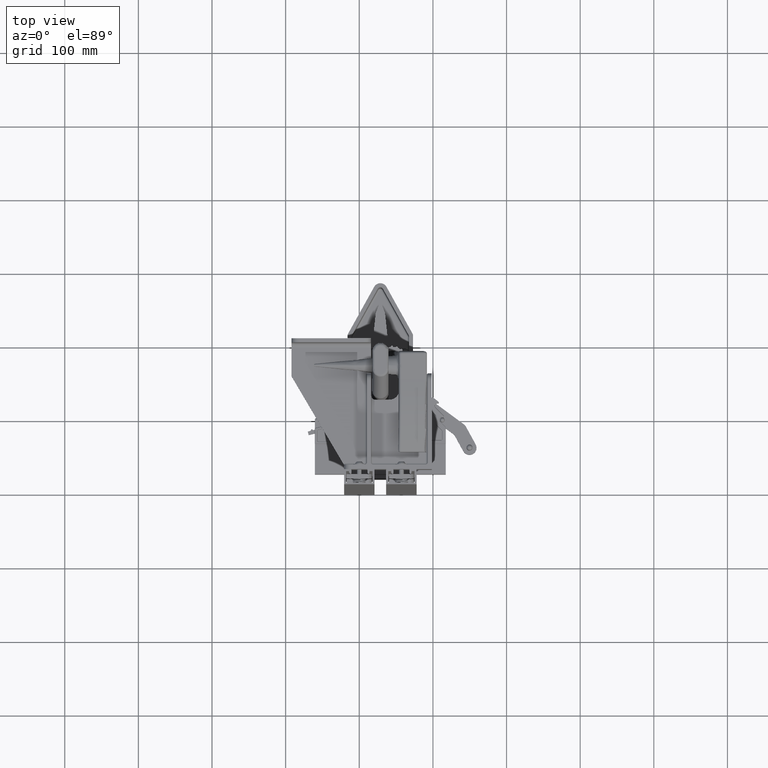
[diagram: clean part render]
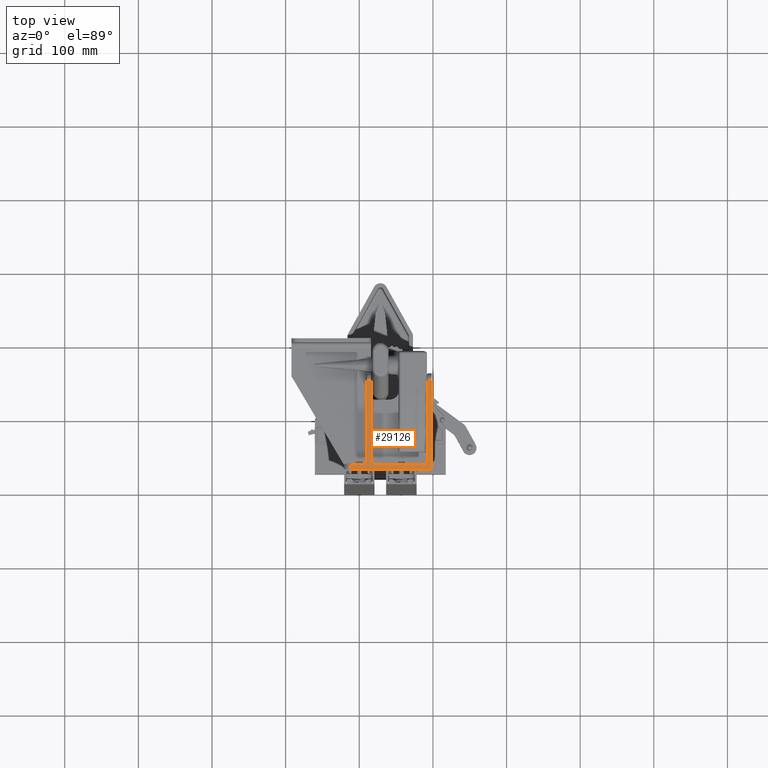
[diagram: same view with one face highlighted and labeled with its STEP entity id]
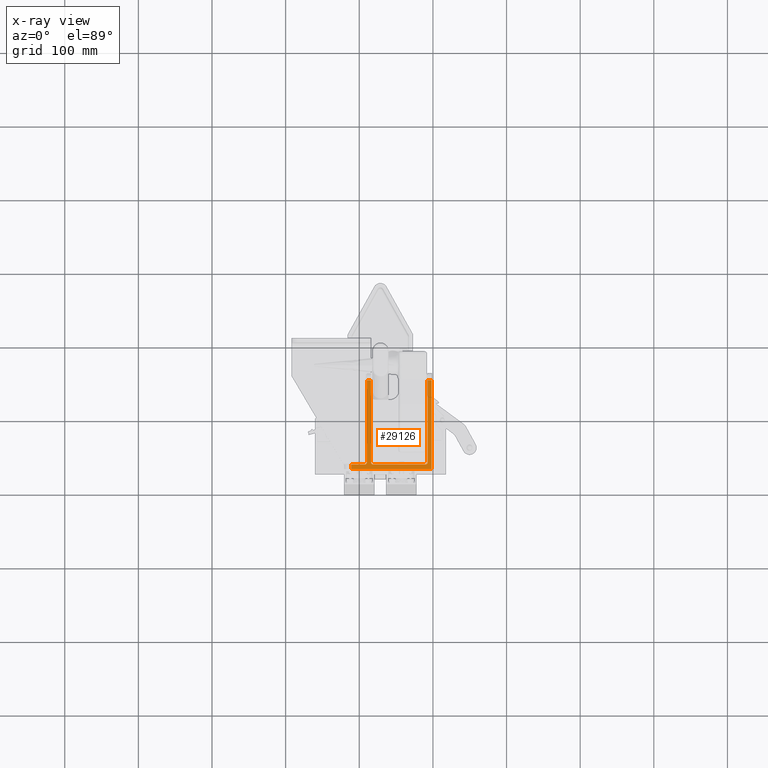
[diagram: x-ray of the same camera — body ghosted, the highlighted face saturated]
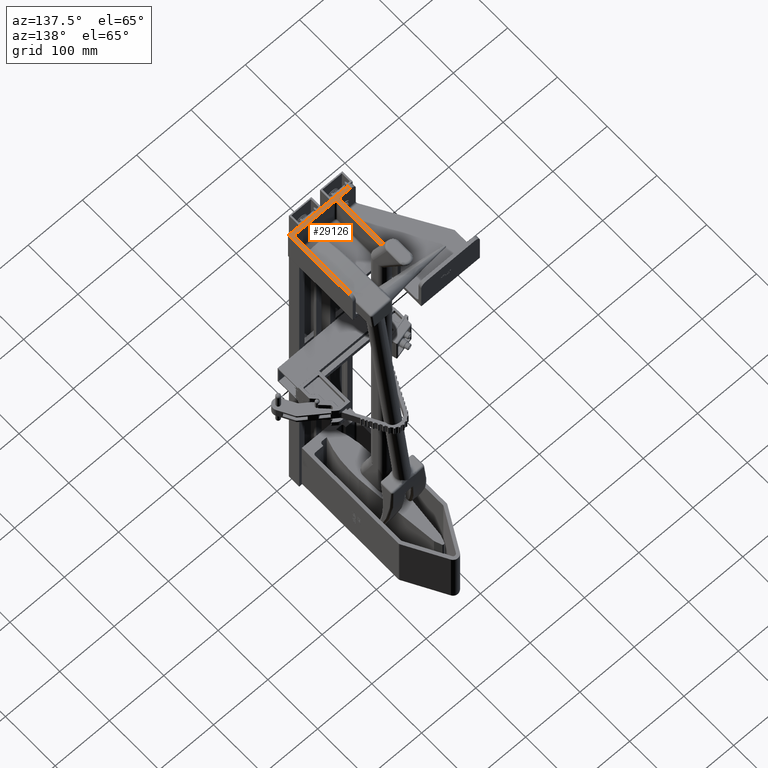
[diagram: same view with one face highlighted and labeled with its STEP entity id]
A machine part, top view. The second image highlights one B-rep face of the part: STEP entity #29126.
The next image is the same camera in x-ray: the body ghosted, the highlighted face saturated — about 0% of this face is hidden behind the body in this view.
A second angle (auxiliary view) of the same face is appended — the face is thin or edge-on in the first view.
In plain terms, the highlighted planar face has unit normal (0, 0, 1).
Its self-contained STEP definition (entity closure, byte-faithful):
#10287 = AXIS2_PLACEMENT_3D ( 'NONE', #16728, #16747, #16748 ) ;
#10300 = AXIS2_PLACEMENT_3D ( 'NONE', #16774, #16785, #16786 ) ;
#10304 = AXIS2_PLACEMENT_3D ( 'NONE', #16777, #16789, #16790 ) ;
#14805 = VECTOR ( 'NONE', #16605, 39.37007874015748100 ) ;
#14822 = LINE ( 'NONE', #16597, #14805 ) ;
#14836 = VECTOR ( 'NONE', #16661, 39.37007874015748100 ) ;
#14839 = LINE ( 'NONE', #16622, #14840 ) ;
#14840 = VECTOR ( 'NONE', #16623, 39.37007874015748100 ) ;
#14854 = LINE ( 'NONE', #16660, #14836 ) ;
#14857 = LINE ( 'NONE', #16644, #14858 ) ;
#14858 = VECTOR ( 'NONE', #16645, 39.37007874015748100 ) ;
#14871 = LINE ( 'NONE', #16662, #14872 ) ;
#14872 = VECTOR ( 'NONE', #16663, 39.37007874015748100 ) ;
#14935 = CIRCLE ( 'NONE', #10287, 0.1250000000000000300 ) ;
#14937 = LINE ( 'NONE', #16791, #14949 ) ;
#14949 = VECTOR ( 'NONE', #16792, 39.37007874015748100 ) ;
#14950 = CIRCLE ( 'NONE', #10300, 0.1250000000000000300 ) ;
#16597 = CARTESIAN_POINT ( 'NONE',  ( -0.9062499999999998900, 0.0000000000000000000, 2.762499999999999700 ) ) ;
#16605 = DIRECTION ( 'NONE',  ( 0.0000000000000000000, 1.000000000000000000, 0.0000000000000000000 ) ) ;
#16622 = CARTESIAN_POINT ( 'NONE',  ( 2.125499999999999700, 5.125000000000000000, 2.762499999999999700 ) ) ;
#16623 = DIRECTION ( 'NONE',  ( 1.066087021917761500E-016, -1.000000000000000000, 0.0000000000000000000 ) ) ;
#16644 = CARTESIAN_POINT ( 'NONE',  ( -1.124500000000000100, 0.0000000000000000000, 2.762499999999999700 ) ) ;
#16645 = DIRECTION ( 'NONE',  ( 0.0000000000000000000, -1.000000000000000000, 0.0000000000000000000 ) ) ;
#16660 = CARTESIAN_POINT ( 'NONE',  ( 2.343750000000000000, 5.125000000000000000, 2.762499999999999700 ) ) ;
#16661 = DIRECTION ( 'NONE',  ( -1.066087021917761500E-016, 1.000000000000000000, 0.0000000000000000000 ) ) ;
#16662 = CARTESIAN_POINT ( 'NONE',  ( 2.343750000000000400, -7.654042494670812700E-018, 2.762499999999999700 ) ) ;
#16663 = DIRECTION ( 'NONE',  ( 1.000000000000000000, -3.507006870410479600E-017, 0.0000000000000000000 ) ) ;
#16728 = CARTESIAN_POINT ( 'NONE',  ( -0.7812499999999997800, 0.3700000000000000000, 2.762499999999999700 ) ) ;
#16747 = DIRECTION ( 'NONE',  ( 0.0000000000000000000, -0.0000000000000000000, -1.000000000000000000 ) ) ;
#16748 = DIRECTION ( 'NONE',  ( 1.000000000000000000, 0.0000000000000000000, 0.0000000000000000000 ) ) ;
#16774 = CARTESIAN_POINT ( 'NONE',  ( -1.249499999999999800, 0.3700000000000000000, 2.762499999999999700 ) ) ;
#16777 = CARTESIAN_POINT ( 'NONE',  ( 2.000500000000000600, 0.3700000000000000000, 2.762499999999999700 ) ) ;
#16785 = DIRECTION ( 'NONE',  ( 0.0000000000000000000, -0.0000000000000000000, -1.000000000000000000 ) ) ;
#16786 = DIRECTION ( 'NONE',  ( 1.000000000000000000, 0.0000000000000000000, 0.0000000000000000000 ) ) ;
#16789 = DIRECTION ( 'NONE',  ( 0.0000000000000000000, -0.0000000000000000000, -1.000000000000000000 ) ) ;
#16790 = DIRECTION ( 'NONE',  ( 1.000000000000000000, 0.0000000000000000000, 0.0000000000000000000 ) ) ;
#16791 = CARTESIAN_POINT ( 'NONE',  ( -1.968750000000000200, 0.0000000000000000000, 2.762499999999999700 ) ) ;
#16792 = DIRECTION ( 'NONE',  ( -1.115039997413985000E-015, -1.000000000000000000, 0.0000000000000000000 ) ) ;
#16793 = CARTESIAN_POINT ( 'NONE',  ( -2.343750000000000000, 0.2450000000000000000, 2.762499999999999700 ) ) ;
#16794 = DIRECTION ( 'NONE',  ( -1.000000000000000000, -0.0000000000000000000, -0.0000000000000000000 ) ) ;
#16795 = CARTESIAN_POINT ( 'NONE',  ( 2.125500000000000200, 4.749999999999999100, 2.762499999999999700 ) ) ;
#16796 = DIRECTION ( 'NONE',  ( -1.000000000000000000, 0.0000000000000000000, 0.0000000000000000000 ) ) ;
#16797 = CARTESIAN_POINT ( 'NONE',  ( -2.343750000000000000, 0.2450000000000000000, 2.762499999999999700 ) ) ;
#16798 = DIRECTION ( 'NONE',  ( -1.000000000000000000, -0.0000000000000000000, -0.0000000000000000000 ) ) ;
#16799 = CARTESIAN_POINT ( 'NONE',  ( -1.124500000000000100, 4.749999999999999100, 2.762499999999999700 ) ) ;
#16800 = DIRECTION ( 'NONE',  ( -1.000000000000000000, 0.0000000000000000000, 0.0000000000000000000 ) ) ;
#17616 = CIRCLE ( 'NONE', #10304, 0.1249999999999999000 ) ;
#17617 = LINE ( 'NONE', #16793, #17618 ) ;
#17618 = VECTOR ( 'NONE', #16794, 39.37007874015748100 ) ;
#17619 = LINE ( 'NONE', #16795, #17620 ) ;
#17620 = VECTOR ( 'NONE', #16796, 39.37007874015748100 ) ;
#17621 = LINE ( 'NONE', #16797, #17622 ) ;
#17622 = VECTOR ( 'NONE', #16798, 39.37007874015748100 ) ;
#17623 = LINE ( 'NONE', #16799, #17624 ) ;
#17624 = VECTOR ( 'NONE', #16800, 39.37007874015748100 ) ;
#24426 = ORIENTED_EDGE ( 'NONE', *, *, #36129, .T. ) ;
#24455 = ORIENTED_EDGE ( 'NONE', *, *, #36132, .T. ) ;
#24456 = ORIENTED_EDGE ( 'NONE', *, *, #36004, .T. ) ;
#24457 = ORIENTED_EDGE ( 'NONE', *, *, #36007, .T. ) ;
#24458 = ORIENTED_EDGE ( 'NONE', *, *, #36120, .T. ) ;
#24459 = ORIENTED_EDGE ( 'NONE', *, *, #36096, .T. ) ;
#24460 = ORIENTED_EDGE ( 'NONE', *, *, #35988, .T. ) ;
#24461 = ORIENTED_EDGE ( 'NONE', *, *, #36134, .T. ) ;
#24462 = ORIENTED_EDGE ( 'NONE', *, *, #35942, .T. ) ;
#24463 = ORIENTED_EDGE ( 'NONE', *, *, #35964, .T. ) ;
#24514 = ORIENTED_EDGE ( 'NONE', *, *, #36136, .T. ) ;
#24515 = ORIENTED_EDGE ( 'NONE', *, *, #36124, .T. ) ;
#24516 = ORIENTED_EDGE ( 'NONE', *, *, #36127, .T. ) ;
#24708 = EDGE_LOOP ( 'NONE', ( #24426, #24516, #24457, #24456, #24455, #24463, #24515, #24461, #24459, #24462, #24514, #24460, #24458 ) ) ;
#27717 = VERTEX_POINT ( 'NONE', #49132 ) ;
#27718 = VERTEX_POINT ( 'NONE', #49133 ) ;
#27723 = VERTEX_POINT ( 'NONE', #49138 ) ;
#27724 = VERTEX_POINT ( 'NONE', #49139 ) ;
#27729 = VERTEX_POINT ( 'NONE', #49144 ) ;
#27730 = VERTEX_POINT ( 'NONE', #49145 ) ;
#27736 = VERTEX_POINT ( 'NONE', #49151 ) ;
#27737 = VERTEX_POINT ( 'NONE', #49152 ) ;
#27741 = VERTEX_POINT ( 'NONE', #49156 ) ;
#27777 = VERTEX_POINT ( 'NONE', #49192 ) ;
#27778 = VERTEX_POINT ( 'NONE', #49193 ) ;
#27780 = VERTEX_POINT ( 'NONE', #49195 ) ;
#27781 = VERTEX_POINT ( 'NONE', #49196 ) ;
#29126 = ADVANCED_FACE ( 'NONE', ( #51107 ), #60749, .T. ) ;
#35942 = EDGE_CURVE ( 'NONE', #27718, #27717, #14822, .T. ) ;
#35964 = EDGE_CURVE ( 'NONE', #27724, #27723, #14839, .T. ) ;
#35988 = EDGE_CURVE ( 'NONE', #27730, #27729, #14857, .T. ) ;
#36004 = EDGE_CURVE ( 'NONE', #27737, #27741, #14854, .T. ) ;
#36007 = EDGE_CURVE ( 'NONE', #27736, #27737, #14871, .T. ) ;
#36096 = EDGE_CURVE ( 'NONE', #27781, #27718, #14935, .T. ) ;
#36120 = EDGE_CURVE ( 'NONE', #27729, #27777, #14950, .T. ) ;
#36124 = EDGE_CURVE ( 'NONE', #27723, #27780, #17616, .T. ) ;
#36127 = EDGE_CURVE ( 'NONE', #27778, #27736, #14937, .T. ) ;
#36129 = EDGE_CURVE ( 'NONE', #27777, #27778, #17617, .T. ) ;
#36132 = EDGE_CURVE ( 'NONE', #27741, #27724, #17619, .T. ) ;
#36134 = EDGE_CURVE ( 'NONE', #27780, #27781, #17621, .T. ) ;
#36136 = EDGE_CURVE ( 'NONE', #27717, #27730, #17623, .T. ) ;
#37526 = AXIS2_PLACEMENT_3D ( 'NONE', #60745, #60752, #60753 ) ;
#49132 = CARTESIAN_POINT ( 'NONE',  ( -0.9062499999999998900, 4.749999999999999100, 2.762499999999999700 ) ) ;
#49133 = CARTESIAN_POINT ( 'NONE',  ( -0.9062499999999998900, 0.3700000000000000000, 2.762499999999999700 ) ) ;
#49138 = CARTESIAN_POINT ( 'NONE',  ( 2.125500000000000200, 0.3700000000000001600, 2.762499999999999700 ) ) ;
#49139 = CARTESIAN_POINT ( 'NONE',  ( 2.125499999999999700, 4.749999999999999100, 2.762499999999999700 ) ) ;
#49144 = CARTESIAN_POINT ( 'NONE',  ( -1.124500000000000100, 0.3700000000000000000, 2.762499999999999700 ) ) ;
#49145 = CARTESIAN_POINT ( 'NONE',  ( -1.124500000000000100, 4.749999999999999100, 2.762499999999999700 ) ) ;
#49151 = CARTESIAN_POINT ( 'NONE',  ( -1.968750000000000200, 1.435856287917811400E-016, 2.762499999999999700 ) ) ;
#49152 = CARTESIAN_POINT ( 'NONE',  ( 2.343750000000000400, -7.654042494670815800E-018, 2.762499999999999700 ) ) ;
#49156 = CARTESIAN_POINT ( 'NONE',  ( 2.343750000000000000, 4.749999999999999100, 2.762499999999999700 ) ) ;
#49192 = CARTESIAN_POINT ( 'NONE',  ( -1.249499999999999800, 0.2450000000000000000, 2.762499999999999700 ) ) ;
#49193 = CARTESIAN_POINT ( 'NONE',  ( -1.968749999999999800, 0.2450000000000000000, 2.762499999999999700 ) ) ;
#49195 = CARTESIAN_POINT ( 'NONE',  ( 2.000500000000000600, 0.2450000000000000000, 2.762499999999999700 ) ) ;
#49196 = CARTESIAN_POINT ( 'NONE',  ( -0.7812499999999997800, 0.2450000000000000000, 2.762499999999999700 ) ) ;
#51107 = FACE_OUTER_BOUND ( 'NONE', #24708, .T. ) ;
#60745 = CARTESIAN_POINT ( 'NONE',  ( -5.156250000000000000, 6.781749999999999700, 2.762499999999999700 ) ) ;
#60749 = PLANE ( 'NONE',  #37526 ) ;
#60752 = DIRECTION ( 'NONE',  ( -0.0000000000000000000, 0.0000000000000000000, 1.000000000000000000 ) ) ;
#60753 = DIRECTION ( 'NONE',  ( 1.000000000000000000, 0.0000000000000000000, 0.0000000000000000000 ) ) ;